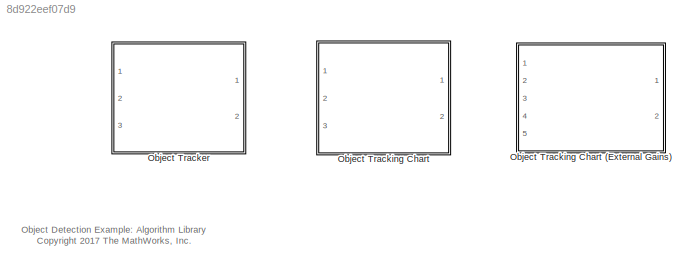
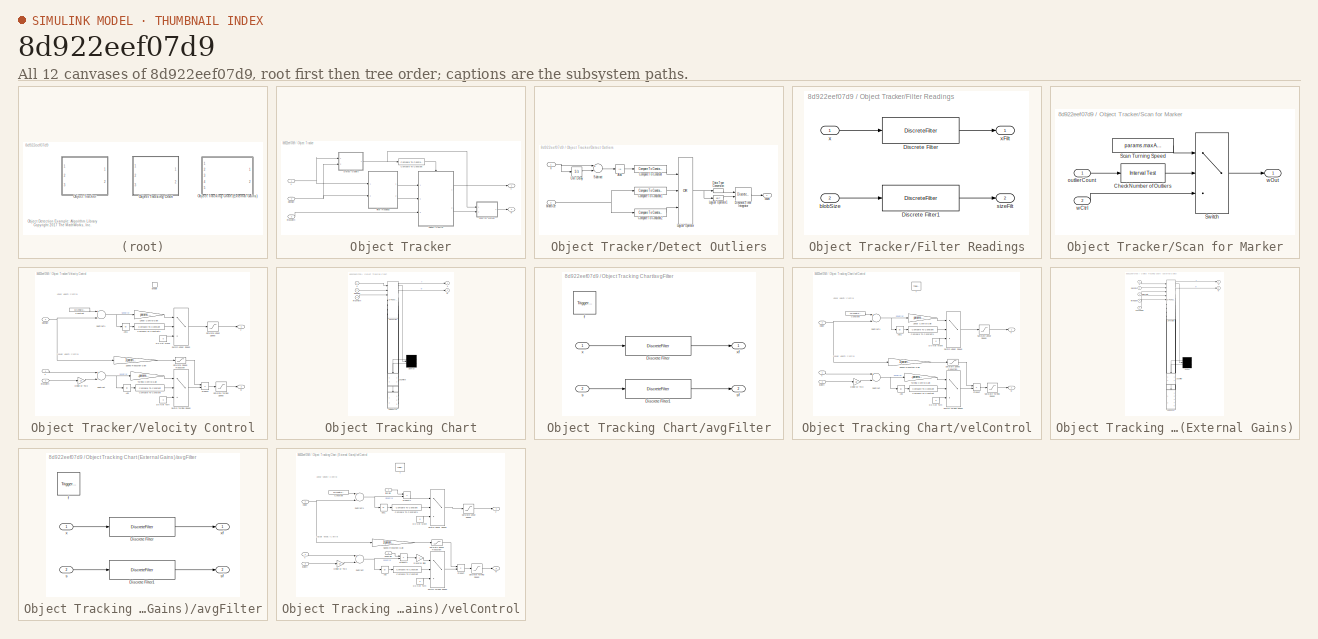
[diagram: thumbnail index - all 12 canvases of the model, root first then tree order]
MODEL slx_8d922eef07d9
KIND library
CONFIG AbsTol = auto
CONFIG EnableMultiTasking = off
CONFIG FixedStep = auto
CONFIG MaxStep = auto
CONFIG MinStep = auto
CONFIG RelTol = 1e-3
CONFIG SampleTimeConstraint = Unconstrained
CONFIG Solver = VariableStepAuto
CONFIG SolverName = VariableStepAuto
CONFIG StartTime = 0.0
CONFIG StopTime = 10.0
BLOCK [SubSystem] Object Tracker
  Ports = [3, 2]
  RequestExecContextInheritance = off
  Variant = off
BLOCK [Reference] Object Tracker/Compare To Constant  REF=simulink/Logic and Bit
Operations/Compare
To Constant
  Ports = [1, 1]
  SourceBlock = simulink/Logic and Bit\nOperations/Compare\nTo Constant
  SourceProductBaseCode = SL
  SourceProductName = Simulink
  SourceType = Compare To Constant
BLOCK [SubSystem] Object Tracker/Detect Outliers
  Ports = [2, 1]
  RequestExecContextInheritance = off
  Variant = off
BLOCK [Abs] Object Tracker/Detect Outliers/Abs
  SaturateOnIntegerOverflow = off
BLOCK [Reference] Object Tracker/Detect Outliers/Compare To Constant  REF=simulink/Logic and Bit
Operations/Compare
To Constant
  Ports = [1, 1]
  SourceBlock = simulink/Logic and Bit\nOperations/Compare\nTo Constant
  SourceProductBaseCode = SL
  SourceProductName = Simulink
  SourceType = Compare To Constant
BLOCK [Reference] Object Tracker/Detect Outliers/Compare To Constant1  REF=simulink/Logic and Bit
Operations/Compare
To Constant
  Ports = [1, 1]
  SourceBlock = simulink/Logic and Bit\nOperations/Compare\nTo Constant
  SourceProductBaseCode = SL
  SourceProductName = Simulink
  SourceType = Compare To Constant
BLOCK [Reference] Object Tracker/Detect Outliers/Compare To Constant2  REF=simulink/Logic and Bit
Operations/Compare
To Constant
  Ports = [1, 1]
  SourceBlock = simulink/Logic and Bit\nOperations/Compare\nTo Constant
  SourceProductBaseCode = SL
  SourceProductName = Simulink
  SourceType = Compare To Constant
BLOCK [DataTypeConversion] Object Tracker/Detect Outliers/Data Type Conversion
  OutDataTypeStr = uint16
  RndMeth = Floor
  SaturateOnIntegerOverflow = off
BLOCK [DiscreteIntegrator] Object Tracker/Detect Outliers/Discrete-Time Integrator
  ExternalReset = level
  ICPrevOutput = DiscIntNeverNeededParam
  ICPrevScaledInput = DiscIntNeverNeededParam
  InitialConditionSetting = State (most efficient)
  IntegratorMethod = Accumulation: Forward Euler
  LimitOutput = on
  LowerSaturationLimit = 0
  Ports = [2, 1]
  SampleTime = -1
  SaturateOnIntegerOverflow = on
  UpperSaturationLimit = 1000
BLOCK [Logic] Object Tracker/Detect Outliers/Logical Operator
  AllPortsSameDT = off
  Inputs = 3
  Operator = OR
  OutDataTypeStr = boolean
  Ports = [3, 1]
BLOCK [Logic] Object Tracker/Detect Outliers/Logical Operator1
  AllPortsSameDT = off
  Operator = NOT
  OutDataTypeStr = boolean
  Ports = [1, 1]
BLOCK [Sum] Object Tracker/Detect Outliers/Subtract
  InputSameDT = off
  Inputs = +-
  OutDataTypeStr = Inherit: Inherit via internal rule
  Ports = [2, 1]
  SaturateOnIntegerOverflow = off
BLOCK [UnitDelay] Object Tracker/Detect Outliers/Unit Delay
  InputProcessing = Elements as channels (sample based)
  SampleTime = -1
BLOCK [Inport] Object Tracker/Detect Outliers/blobSize
  IconDisplay = Port number
  Port = 2
BLOCK [Outport] Object Tracker/Detect Outliers/count
  IconDisplay = Port number
BLOCK [Inport] Object Tracker/Detect Outliers/x
  IconDisplay = Port number
BLOCK [SubSystem] Object Tracker/Filter Readings
  Ports = [2, 2]
  RequestExecContextInheritance = off
  Variant = off
BLOCK [DiscreteFilter] Object Tracker/Filter Readings/Discrete Filter
  Denominator = [params.bufSize]
  InputPortMap = u0
  Numerator = [ones(1,params.bufSize)]
  Ports = [1, 1]
BLOCK [DiscreteFilter] Object Tracker/Filter Readings/Discrete Filter1
  Denominator = [params.bufSize]
  InputPortMap = u0
  Numerator = [ones(1,params.bufSize)]
  Ports = [1, 1]
BLOCK [Inport] Object Tracker/Filter Readings/blobSize
  IconDisplay = Port number
  Port = 2
BLOCK [Outport] Object Tracker/Filter Readings/sizeFilt
  IconDisplay = Port number
  Port = 2
BLOCK [Inport] Object Tracker/Filter Readings/x
  IconDisplay = Port number
BLOCK [Outport] Object Tracker/Filter Readings/xFilt
  IconDisplay = Port number
BLOCK [SubSystem] Object Tracker/Scan for Marker
  Ports = [2, 1]
  RequestExecContextInheritance = off
  Variant = off
BLOCK [Reference] Object Tracker/Scan for Marker/Check Number of Outliers  REF=simulink/Logic and Bit
Operations/Interval Test
  Ports = [1, 1]
  SourceBlock = simulink/Logic and Bit\nOperations/Interval Test
  SourceProductBaseCode = SL
  SourceProductName = Simulink
  SourceType = Interval Test
BLOCK [Constant] Object Tracker/Scan for Marker/Scan Turning Speed
  Value = params.maxAngVel/2
BLOCK [Switch] Object Tracker/Scan for Marker/Switch
  Criteria = u2 > Threshold
  InputSameDT = off
  SaturateOnIntegerOverflow = off
BLOCK [Inport] Object Tracker/Scan for Marker/outlierCount
  IconDisplay = Port number
BLOCK [Inport] Object Tracker/Scan for Marker/wCtrl
  IconDisplay = Port number
  Port = 2
BLOCK [Outport] Object Tracker/Scan for Marker/wOut
  IconDisplay = Port number
BLOCK [SubSystem] Object Tracker/Velocity Control
  Ports = [3, 2, 1]
  RequestExecContextInheritance = off
  Variant = off
BLOCK [Abs] Object Tracker/Velocity Control/Abs
  SaturateOnIntegerOverflow = off
BLOCK [Abs] Object Tracker/Velocity Control/Abs1
  SaturateOnIntegerOverflow = off
BLOCK [Reference] Object Tracker/Velocity Control/Compare To Constant  REF=simulink/Logic and Bit
Operations/Compare
To Constant
  Ports = [1, 1]
  SourceBlock = simulink/Logic and Bit\nOperations/Compare\nTo Constant
  SourceProductBaseCode = SL
  SourceProductName = Simulink
  SourceType = Compare To Constant
BLOCK [Reference] Object Tracker/Velocity Control/Compare To Constant1  REF=simulink/Logic and Bit
Operations/Compare
To Constant
  Ports = [1, 1]
  SourceBlock = simulink/Logic and Bit\nOperations/Compare\nTo Constant
  SourceProductBaseCode = SL
  SourceProductName = Simulink
  SourceType = Compare To Constant
BLOCK [Constant] Object Tracker/Velocity Control/Constant
  Value = params.targetSize
BLOCK [Gain] Object Tracker/Velocity Control/Divide by Two
  Gain = 1/2
  OutDataTypeStr = Inherit: Inherit via internal rule
  ParamDataTypeStr = Inherit: Inherit via internal rule
  SaturateOnIntegerOverflow = off
BLOCK [Constant] Object Tracker/Velocity Control/Do Not Move
  Value = 0
BLOCK [Constant] Object Tracker/Velocity Control/Do Not Turn
  Value = 0
BLOCK [EnablePort] Object Tracker/Velocity Control/Enable
  Ports = []
  StatesWhenEnabling = reset
BLOCK [Gain] Object Tracker/Velocity Control/Linear Control Gain
  Gain = params.linVelGain
  OutDataTypeStr = Inherit: Inherit via internal rule
  ParamDataTypeStr = Inherit: Inherit via internal rule
  SaturateOnIntegerOverflow = off
BLOCK [Product] Object Tracker/Velocity Control/Product
  InputSameDT = off
  OutDataTypeStr = Inherit: Inherit via internal rule
  Ports = [2, 1]
  RndMeth = Floor
  SaturateOnIntegerOverflow = off
BLOCK [Saturate] Object Tracker/Velocity Control/Saturate Linear Speed
  InputPortMap = u0
  LowerLimit = -params.maxLinVel
  Ports = [1, 1]
  UpperLimit = params.maxLinVel
BLOCK [Saturate] Object Tracker/Velocity Control/Saturate Speed Reduction
  InputPortMap = u0
  LowerLimit = 0
  Ports = [1, 1]
  UpperLimit = 1
BLOCK [Saturate] Object Tracker/Velocity Control/Saturate Turning Speed
  InputPortMap = u0
  LowerLimit = -params.maxAngVel
  Ports = [1, 1]
  UpperLimit = params.maxAngVel
BLOCK [Gain] Object Tracker/Velocity Control/Speed Reduction Gain
  Gain = 1/params.speedRedSize
  OutDataTypeStr = Inherit: Inherit via internal rule
  ParamDataTypeStr = Inherit: Inherit via internal rule
  SaturateOnIntegerOverflow = off
BLOCK [Sum] Object Tracker/Velocity Control/Subtract
  InputSameDT = off
  Inputs = +-
  OutDataTypeStr = Inherit: Inherit via internal rule
  Ports = [2, 1]
  SaturateOnIntegerOverflow = off
BLOCK [Sum] Object Tracker/Velocity Control/Subtract1
  InputSameDT = off
  Inputs = +-
  OutDataTypeStr = Inherit: Inherit via internal rule
  Ports = [2, 1]
  SaturateOnIntegerOverflow = off
BLOCK [Switch] Object Tracker/Velocity Control/Switch Linear Speed
  Criteria = u2 ~= 0
  InputSameDT = off
  SaturateOnIntegerOverflow = off
BLOCK [Switch] Object Tracker/Velocity Control/Switch Turning Speed
  Criteria = u2 ~= 0
  InputSameDT = off
  SaturateOnIntegerOverflow = off
BLOCK [Gain] Object Tracker/Velocity Control/Turning Control Gain
  Gain = -params.angVelGain
  OutDataTypeStr = Inherit: Inherit via internal rule
  ParamDataTypeStr = Inherit: Inherit via internal rule
  SaturateOnIntegerOverflow = off
BLOCK [Inport] Object Tracker/Velocity Control/blobSize
  IconDisplay = Port number
  Port = 2
BLOCK [Inport] Object Tracker/Velocity Control/imgWidth
  IconDisplay = Port number
  Port = 3
BLOCK [Outport] Object Tracker/Velocity Control/v
  IconDisplay = Port number
  InitialOutput = 0
  OutputWhenDisabled = reset
BLOCK [Outport] Object Tracker/Velocity Control/w
  IconDisplay = Port number
  InitialOutput = 0
  OutputWhenDisabled = reset
  Port = 2
BLOCK [Inport] Object Tracker/Velocity Control/x
  IconDisplay = Port number
BLOCK [Inport] Object Tracker/blobSize
  IconDisplay = Port number
  Port = 2
BLOCK [Inport] Object Tracker/imgWidth
  IconDisplay = Port number
  Port = 3
BLOCK [Outport] Object Tracker/v
  IconDisplay = Port number
BLOCK [Outport] Object Tracker/w
  IconDisplay = Port number
  Port = 2
BLOCK [Inport] Object Tracker/x
  IconDisplay = Port number
BLOCK [SubSystem] Object Tracking Chart
  ErrorFcn = Stateflow.Translate.translate
  PermitHierarchicalResolution = ExplicitOnly
  Ports = [3, 2]
  RequestExecContextInheritance = off
  SFBlockType = Chart
  TreatAsAtomicUnit = on
  Variant = off
BLOCK [SubSystem] Object Tracking Chart (External Gains)
  ErrorFcn = Stateflow.Translate.translate
  PermitHierarchicalResolution = ExplicitOnly
  Ports = [5, 2]
  RequestExecContextInheritance = off
  SFBlockType = Chart
  TreatAsAtomicUnit = on
  Variant = off
BLOCK [Demux] Object Tracking Chart (External Gains)/ Demux 
  Outputs = 2
  Ports = [1, 2]
BLOCK [S-Function] Object Tracking Chart (External Gains)/ SFunction 
  EnableBusSupport = off
  FunctionName = sf_sfun
  Parameters = params
  PortCounts = [9 10]
  Ports = [9, 10]
  SFcnIsStateOwnerBlock = off
  SFunctionDeploymentMode = off
  Tag = Stateflow S-Function controlLib 1
BLOCK [Inport] Object Tracking Chart (External Gains)/angVelGain
  IconDisplay = Port number
  Port = 5
BLOCK [SubSystem] Object Tracking Chart (External Gains)/avgFilter
  Ports = [2, 2, 0, 1]
  PreDeleteFcn = Stateflow.SLINSF.SimulinkMan.removePreDeleteFcn
  RequestExecContextInheritance = off
  UndoDeleteFcn = Stateflow.SLINSF.SimulinkMan.restorePreDeleteFcn
  Variant = off
BLOCK [DiscreteFilter] Object Tracking Chart (External Gains)/avgFilter/Discrete Filter
  Denominator = [params.bufSize]
  InputPortMap = u0
  Numerator = [ones(1,params.bufSize)]
  Ports = [1, 1]
BLOCK [DiscreteFilter] Object Tracking Chart (External Gains)/avgFilter/Discrete Filter1
  Denominator = [params.bufSize]
  InputPortMap = u0
  Numerator = [ones(1,params.bufSize)]
  Ports = [1, 1]
BLOCK [TriggerPort] Object Tracking Chart (External Gains)/avgFilter/f
  CopyFcn = Stateflow.SLINSF.SimulinkMan.removeBlockPreDeleteFcn
  Ports = []
  PreDeleteFcn = Stateflow.SLINSF.SimulinkMan.unsafePredeleteFcn
  StatesWhenEnabling = held
  TriggerType = function-call
  VariantControl = Variant
BLOCK [Inport] Object Tracking Chart (External Gains)/avgFilter/s
  IconDisplay = Port number
  OutDataTypeStr = double
  Port = 2
  PortDimensions = 1
  SignalType = real
  VarSizeSig = No
BLOCK [Outport] Object Tracking Chart (External Gains)/avgFilter/sf
  IconDisplay = Port number
  Port = 2
BLOCK [Inport] Object Tracking Chart (External Gains)/avgFilter/x
  IconDisplay = Port number
  OutDataTypeStr = double
  PortDimensions = 1
  SignalType = real
  VarSizeSig = No
BLOCK [Outport] Object Tracking Chart (External Gains)/avgFilter/xf
  IconDisplay = Port number
BLOCK [Inport] Object Tracking Chart (External Gains)/blobSize
  IconDisplay = Port number
  Port = 2
BLOCK [Inport] Object Tracking Chart (External Gains)/imgWidth
  IconDisplay = Port number
  Port = 3
BLOCK [Inport] Object Tracking Chart (External Gains)/linVelGain
  IconDisplay = Port number
  Port = 4
BLOCK [Outport] Object Tracking Chart (External Gains)/v
  IconDisplay = Port number
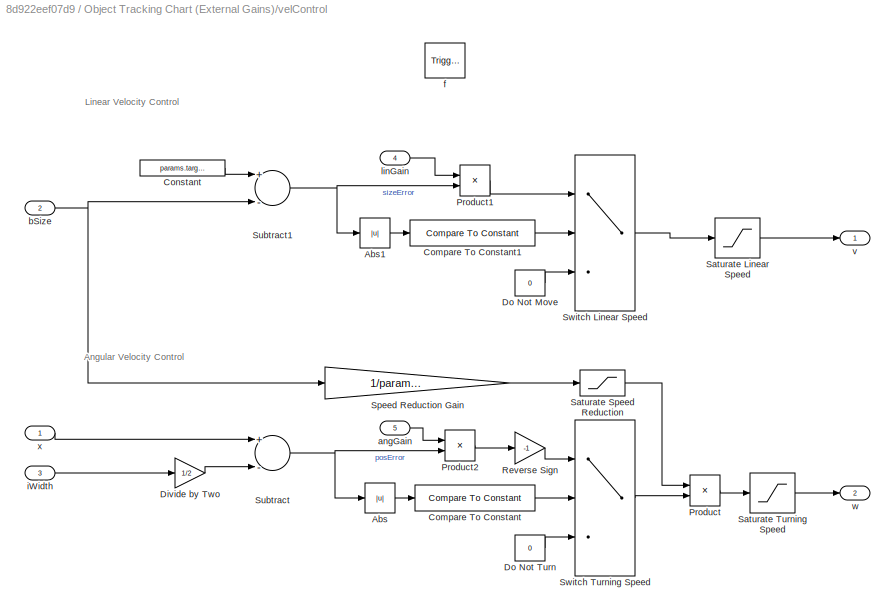
BLOCK [SubSystem] Object Tracking Chart (External Gains)/velControl
  Ports = [5, 2, 0, 1]
  PreDeleteFcn = Stateflow.SLINSF.SimulinkMan.removePreDeleteFcn
  RequestExecContextInheritance = off
  UndoDeleteFcn = Stateflow.SLINSF.SimulinkMan.restorePreDeleteFcn
  Variant = off
BLOCK [Abs] Object Tracking Chart (External Gains)/velControl/Abs
  SaturateOnIntegerOverflow = off
BLOCK [Abs] Object Tracking Chart (External Gains)/velControl/Abs1
  SaturateOnIntegerOverflow = off
BLOCK [Reference] Object Tracking Chart (External Gains)/velControl/Compare To Constant  REF=simulink/Logic and Bit
Operations/Compare
To Constant
  Ports = [1, 1]
  SourceBlock = simulink/Logic and Bit\nOperations/Compare\nTo Constant
  SourceProductBaseCode = SL
  SourceProductName = Simulink
  SourceType = Compare To Constant
BLOCK [Reference] Object Tracking Chart (External Gains)/velControl/Compare To Constant1  REF=simulink/Logic and Bit
Operations/Compare
To Constant
  Ports = [1, 1]
  SourceBlock = simulink/Logic and Bit\nOperations/Compare\nTo Constant
  SourceProductBaseCode = SL
  SourceProductName = Simulink
  SourceType = Compare To Constant
BLOCK [Constant] Object Tracking Chart (External Gains)/velControl/Constant
  Value = params.targetSize
BLOCK [Gain] Object Tracking Chart (External Gains)/velControl/Divide by Two
  Gain = 1/2
  OutDataTypeStr = Inherit: Inherit via internal rule
  ParamDataTypeStr = Inherit: Inherit via internal rule
  SaturateOnIntegerOverflow = off
BLOCK [Constant] Object Tracking Chart (External Gains)/velControl/Do Not Move
  Value = 0
BLOCK [Constant] Object Tracking Chart (External Gains)/velControl/Do Not Turn
  Value = 0
BLOCK [Product] Object Tracking Chart (External Gains)/velControl/Product
  InputSameDT = off
  OutDataTypeStr = Inherit: Inherit via internal rule
  Ports = [2, 1]
  RndMeth = Floor
  SaturateOnIntegerOverflow = off
BLOCK [Product] Object Tracking Chart (External Gains)/velControl/Product1
  InputSameDT = off
  OutDataTypeStr = Inherit: Inherit via internal rule
  Ports = [2, 1]
  RndMeth = Floor
  SaturateOnIntegerOverflow = off
BLOCK [Product] Object Tracking Chart (External Gains)/velControl/Product2
  InputSameDT = off
  OutDataTypeStr = Inherit: Inherit via internal rule
  Ports = [2, 1]
  RndMeth = Floor
  SaturateOnIntegerOverflow = off
BLOCK [Gain] Object Tracking Chart (External Gains)/velControl/Reverse Sign
  Gain = -1
  OutDataTypeStr = Inherit: Inherit via internal rule
  ParamDataTypeStr = Inherit: Inherit via internal rule
  SaturateOnIntegerOverflow = off
BLOCK [Saturate] Object Tracking Chart (External Gains)/velControl/Saturate Linear Speed
  InputPortMap = u0
  LowerLimit = -params.maxLinVel
  Ports = [1, 1]
  UpperLimit = params.maxLinVel
BLOCK [Saturate] Object Tracking Chart (External Gains)/velControl/Saturate Speed Reduction
  InputPortMap = u0
  LowerLimit = 0
  Ports = [1, 1]
  UpperLimit = 1
BLOCK [Saturate] Object Tracking Chart (External Gains)/velControl/Saturate Turning Speed
  InputPortMap = u0
  LowerLimit = -params.maxAngVel
  Ports = [1, 1]
  UpperLimit = params.maxAngVel
BLOCK [Gain] Object Tracking Chart (External Gains)/velControl/Speed Reduction Gain
  Gain = 1/params.speedRedSize
  OutDataTypeStr = Inherit: Inherit via internal rule
  ParamDataTypeStr = Inherit: Inherit via internal rule
  SaturateOnIntegerOverflow = off
BLOCK [Sum] Object Tracking Chart (External Gains)/velControl/Subtract
  InputSameDT = off
  Inputs = +-
  OutDataTypeStr = Inherit: Inherit via internal rule
  Ports = [2, 1]
  SaturateOnIntegerOverflow = off
BLOCK [Sum] Object Tracking Chart (External Gains)/velControl/Subtract1
  InputSameDT = off
  Inputs = +-
  OutDataTypeStr = Inherit: Inherit via internal rule
  Ports = [2, 1]
  SaturateOnIntegerOverflow = off
BLOCK [Switch] Object Tracking Chart (External Gains)/velControl/Switch Linear Speed
  Criteria = u2 ~= 0
  InputSameDT = off
  SaturateOnIntegerOverflow = off
BLOCK [Switch] Object Tracking Chart (External Gains)/velControl/Switch Turning Speed
  Criteria = u2 ~= 0
  InputSameDT = off
  SaturateOnIntegerOverflow = off
BLOCK [Inport] Object Tracking Chart (External Gains)/velControl/angGain
  IconDisplay = Port number
  OutDataTypeStr = double
  Port = 5
  PortDimensions = 1
  SignalType = real
  VarSizeSig = No
BLOCK [Inport] Object Tracking Chart (External Gains)/velControl/bSize
  IconDisplay = Port number
  OutDataTypeStr = double
  Port = 2
  PortDimensions = 1
  SignalType = real
  VarSizeSig = No
BLOCK [TriggerPort] Object Tracking Chart (External Gains)/velControl/f
  CopyFcn = Stateflow.SLINSF.SimulinkMan.removeBlockPreDeleteFcn
  Ports = []
  PreDeleteFcn = Stateflow.SLINSF.SimulinkMan.unsafePredeleteFcn
  StatesWhenEnabling = held
  TriggerType = function-call
  VariantControl = Variant
BLOCK [Inport] Object Tracking Chart (External Gains)/velControl/iWidth
  IconDisplay = Port number
  OutDataTypeStr = double
  Port = 3
  PortDimensions = 1
  SignalType = real
  VarSizeSig = No
BLOCK [Inport] Object Tracking Chart (External Gains)/velControl/linGain
  IconDisplay = Port number
  OutDataTypeStr = double
  Port = 4
  PortDimensions = 1
  SignalType = real
  VarSizeSig = No
BLOCK [Outport] Object Tracking Chart (External Gains)/velControl/v
  IconDisplay = Port number
  InitialOutput = 0
  OutputWhenDisabled = reset
BLOCK [Outport] Object Tracking Chart (External Gains)/velControl/w
  IconDisplay = Port number
  InitialOutput = 0
  OutputWhenDisabled = reset
  Port = 2
BLOCK [Inport] Object Tracking Chart (External Gains)/velControl/x
  IconDisplay = Port number
  OutDataTypeStr = double
  PortDimensions = 1
  SignalType = real
  VarSizeSig = No
BLOCK [Outport] Object Tracking Chart (External Gains)/w
  IconDisplay = Port number
  Port = 2
BLOCK [Inport] Object Tracking Chart (External Gains)/x
  IconDisplay = Port number
BLOCK [Demux] Object Tracking Chart/ Demux 
  Outputs = 2
  Ports = [1, 2]
BLOCK [S-Function] Object Tracking Chart/ SFunction 
  EnableBusSupport = on
  FunctionName = sf_sfun
  Parameters = params
  PortCounts = [7 8]
  Ports = [7, 8]
  SFcnIsStateOwnerBlock = off
  SFunctionDeploymentMode = off
  Tag = Stateflow S-Function controlLib 3
BLOCK [SubSystem] Object Tracking Chart/avgFilter
  Ports = [2, 2, 0, 1]
  PreDeleteFcn = Stateflow.SLINSF.SimulinkMan.removePreDeleteFcn
  RequestExecContextInheritance = off
  UndoDeleteFcn = Stateflow.SLINSF.SimulinkMan.restorePreDeleteFcn
  Variant = off
BLOCK [DiscreteFilter] Object Tracking Chart/avgFilter/Discrete Filter
  Denominator = [params.bufSize]
  InputPortMap = u0
  Numerator = [ones(1,params.bufSize)]
  Ports = [1, 1]
BLOCK [DiscreteFilter] Object Tracking Chart/avgFilter/Discrete Filter1
  Denominator = [params.bufSize]
  InputPortMap = u0
  Numerator = [ones(1,params.bufSize)]
  Ports = [1, 1]
BLOCK [TriggerPort] Object Tracking Chart/avgFilter/f
  CopyFcn = Stateflow.SLINSF.SimulinkMan.removeBlockPreDeleteFcn
  Ports = []
  PreDeleteFcn = Stateflow.SLINSF.SimulinkMan.unsafePredeleteFcn
  StatesWhenEnabling = held
  TriggerType = function-call
  VariantControl = Variant
BLOCK [Inport] Object Tracking Chart/avgFilter/s
  IconDisplay = Port number
  OutDataTypeStr = double
  Port = 2
  PortDimensions = 1
  SignalType = real
  VarSizeSig = No
BLOCK [Outport] Object Tracking Chart/avgFilter/sf
  IconDisplay = Port number
  Port = 2
BLOCK [Inport] Object Tracking Chart/avgFilter/x
  IconDisplay = Port number
  OutDataTypeStr = double
  PortDimensions = 1
  SignalType = real
  VarSizeSig = No
BLOCK [Outport] Object Tracking Chart/avgFilter/xf
  IconDisplay = Port number
BLOCK [Inport] Object Tracking Chart/blobSize
  IconDisplay = Port number
  Port = 2
BLOCK [Inport] Object Tracking Chart/imgWidth
  IconDisplay = Port number
  Port = 3
BLOCK [Outport] Object Tracking Chart/v
  IconDisplay = Port number
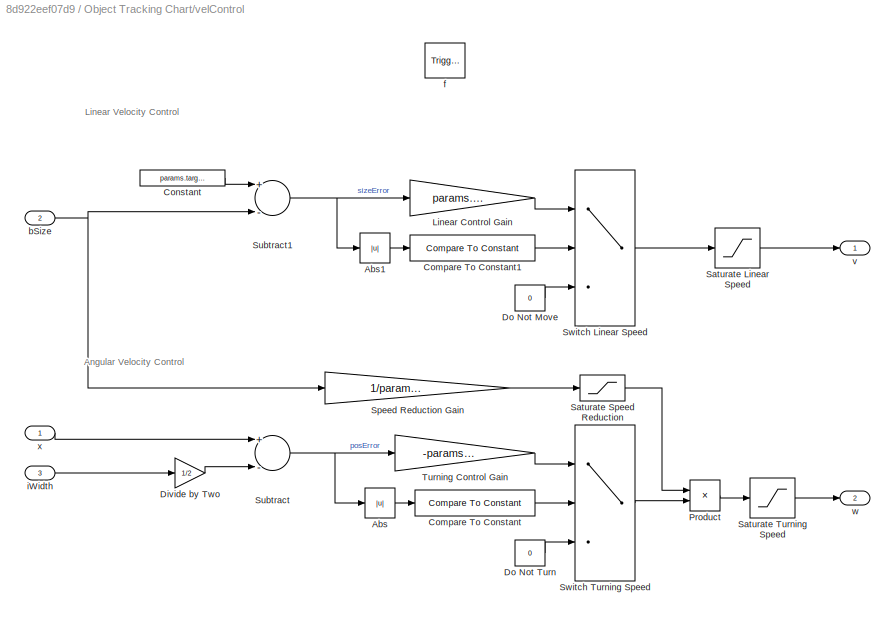
BLOCK [SubSystem] Object Tracking Chart/velControl
  Ports = [3, 2, 0, 1]
  PreDeleteFcn = Stateflow.SLINSF.SimulinkMan.removePreDeleteFcn
  RequestExecContextInheritance = off
  UndoDeleteFcn = Stateflow.SLINSF.SimulinkMan.restorePreDeleteFcn
  Variant = off
BLOCK [Abs] Object Tracking Chart/velControl/Abs
  SaturateOnIntegerOverflow = off
BLOCK [Abs] Object Tracking Chart/velControl/Abs1
  SaturateOnIntegerOverflow = off
BLOCK [Reference] Object Tracking Chart/velControl/Compare To Constant  REF=simulink/Logic and Bit
Operations/Compare
To Constant
  Ports = [1, 1]
  SourceBlock = simulink/Logic and Bit\nOperations/Compare\nTo Constant
  SourceProductBaseCode = SL
  SourceProductName = Simulink
  SourceType = Compare To Constant
BLOCK [Reference] Object Tracking Chart/velControl/Compare To Constant1  REF=simulink/Logic and Bit
Operations/Compare
To Constant
  Ports = [1, 1]
  SourceBlock = simulink/Logic and Bit\nOperations/Compare\nTo Constant
  SourceProductBaseCode = SL
  SourceProductName = Simulink
  SourceType = Compare To Constant
BLOCK [Constant] Object Tracking Chart/velControl/Constant
  Value = params.targetSize
BLOCK [Gain] Object Tracking Chart/velControl/Divide by Two
  Gain = 1/2
  OutDataTypeStr = Inherit: Inherit via internal rule
  ParamDataTypeStr = Inherit: Inherit via internal rule
  SaturateOnIntegerOverflow = off
BLOCK [Constant] Object Tracking Chart/velControl/Do Not Move
  Value = 0
BLOCK [Constant] Object Tracking Chart/velControl/Do Not Turn
  Value = 0
BLOCK [Gain] Object Tracking Chart/velControl/Linear Control Gain
  Gain = params.linVelGain
  OutDataTypeStr = Inherit: Inherit via internal rule
  ParamDataTypeStr = Inherit: Inherit via internal rule
  SaturateOnIntegerOverflow = off
BLOCK [Product] Object Tracking Chart/velControl/Product
  InputSameDT = off
  OutDataTypeStr = Inherit: Inherit via internal rule
  Ports = [2, 1]
  RndMeth = Floor
  SaturateOnIntegerOverflow = off
BLOCK [Saturate] Object Tracking Chart/velControl/Saturate Linear Speed
  InputPortMap = u0
  LowerLimit = -params.maxLinVel
  Ports = [1, 1]
  UpperLimit = params.maxLinVel
BLOCK [Saturate] Object Tracking Chart/velControl/Saturate Speed Reduction
  InputPortMap = u0
  LowerLimit = 0
  Ports = [1, 1]
  UpperLimit = 1
BLOCK [Saturate] Object Tracking Chart/velControl/Saturate Turning Speed
  InputPortMap = u0
  LowerLimit = -params.maxAngVel
  Ports = [1, 1]
  UpperLimit = params.maxAngVel
BLOCK [Gain] Object Tracking Chart/velControl/Speed Reduction Gain
  Gain = 1/params.speedRedSize
  OutDataTypeStr = Inherit: Inherit via internal rule
  ParamDataTypeStr = Inherit: Inherit via internal rule
  SaturateOnIntegerOverflow = off
BLOCK [Sum] Object Tracking Chart/velControl/Subtract
  InputSameDT = off
  Inputs = +-
  OutDataTypeStr = Inherit: Inherit via internal rule
  Ports = [2, 1]
  SaturateOnIntegerOverflow = off
BLOCK [Sum] Object Tracking Chart/velControl/Subtract1
  InputSameDT = off
  Inputs = +-
  OutDataTypeStr = Inherit: Inherit via internal rule
  Ports = [2, 1]
  SaturateOnIntegerOverflow = off
BLOCK [Switch] Object Tracking Chart/velControl/Switch Linear Speed
  Criteria = u2 ~= 0
  InputSameDT = off
  SaturateOnIntegerOverflow = off
BLOCK [Switch] Object Tracking Chart/velControl/Switch Turning Speed
  Criteria = u2 ~= 0
  InputSameDT = off
  SaturateOnIntegerOverflow = off
BLOCK [Gain] Object Tracking Chart/velControl/Turning Control Gain
  Gain = -params.angVelGain
  OutDataTypeStr = Inherit: Inherit via internal rule
  ParamDataTypeStr = Inherit: Inherit via internal rule
  SaturateOnIntegerOverflow = off
BLOCK [Inport] Object Tracking Chart/velControl/bSize
  IconDisplay = Port number
  OutDataTypeStr = double
  Port = 2
  PortDimensions = 1
  SignalType = real
  VarSizeSig = No
BLOCK [TriggerPort] Object Tracking Chart/velControl/f
  CopyFcn = Stateflow.SLINSF.SimulinkMan.removeBlockPreDeleteFcn
  Ports = []
  PreDeleteFcn = Stateflow.SLINSF.SimulinkMan.unsafePredeleteFcn
  StatesWhenEnabling = held
  TriggerType = function-call
  VariantControl = Variant
BLOCK [Inport] Object Tracking Chart/velControl/iWidth
  IconDisplay = Port number
  OutDataTypeStr = double
  Port = 3
  PortDimensions = 1
  SignalType = real
  VarSizeSig = No
BLOCK [Outport] Object Tracking Chart/velControl/v
  IconDisplay = Port number
  InitialOutput = 0
  OutputWhenDisabled = reset
BLOCK [Outport] Object Tracking Chart/velControl/w
  IconDisplay = Port number
  InitialOutput = 0
  OutputWhenDisabled = reset
  Port = 2
BLOCK [Inport] Object Tracking Chart/velControl/x
  IconDisplay = Port number
  OutDataTypeStr = double
  PortDimensions = 1
  SignalType = real
  VarSizeSig = No
BLOCK [Outport] Object Tracking Chart/w
  IconDisplay = Port number
  Port = 2
BLOCK [Inport] Object Tracking Chart/x
  IconDisplay = Port number
ANNOTATION (root): Object Detection Example: Algorithm Library <copyright redacted>
ANNOTATION Object Tracker/Velocity Control: Angular Velocity Control
ANNOTATION Object Tracker/Velocity Control: Linear Velocity Control
ANNOTATION Object Tracking Chart (External Gains)/velControl: Angular Velocity Control
ANNOTATION Object Tracking Chart (External Gains)/velControl: Linear Velocity Control
ANNOTATION Object Tracking Chart/velControl: Angular Velocity Control
ANNOTATION Object Tracking Chart/velControl: Linear Velocity Control
LINE Object Tracker/Compare To Constant:1 -> Object Tracker/Velocity Control:enable
LINE Object Tracker/Detect Outliers/Abs:1 -> Object Tracker/Detect Outliers/Compare To Constant:1
LINE Object Tracker/Detect Outliers/Compare To Constant1:1 -> Object Tracker/Detect Outliers/Logical Operator:2
LINE Object Tracker/Detect Outliers/Compare To Constant2:1 -> Object Tracker/Detect Outliers/Logical Operator:3
LINE Object Tracker/Detect Outliers/Compare To Constant:1 -> Object Tracker/Detect Outliers/Logical Operator:1
LINE Object Tracker/Detect Outliers/Data Type Conversion:1 -> Object Tracker/Detect Outliers/Discrete-Time Integrator:1
LINE Object Tracker/Detect Outliers/Discrete-Time Integrator:1 -> Object Tracker/Detect Outliers/count:1
LINE Object Tracker/Detect Outliers/Logical Operator1:1 -> Object Tracker/Detect Outliers/Discrete-Time Integrator:2
NET Object Tracker/Detect Outliers/Logical Operator:1 -> Object Tracker/Detect Outliers/Data Type Conversion:1, Object Tracker/Detect Outliers/Logical Operator1:1
LINE Object Tracker/Detect Outliers/Subtract:1 -> Object Tracker/Detect Outliers/Abs:1
LINE Object Tracker/Detect Outliers/Unit Delay:1 -> Object Tracker/Detect Outliers/Subtract:2
NET Object Tracker/Detect Outliers/blobSize:1 -> Object Tracker/Detect Outliers/Compare To Constant1:1, Object Tracker/Detect Outliers/Compare To Constant2:1
NET Object Tracker/Detect Outliers/x:1 -> Object Tracker/Detect Outliers/Subtract:1, Object Tracker/Detect Outliers/Unit Delay:1
NET Object Tracker/Detect Outliers:1 -> Object Tracker/Compare To Constant:1, Object Tracker/Scan for Marker:1
LINE Object Tracker/Filter Readings/Discrete Filter1:1 -> Object Tracker/Filter Readings/sizeFilt:1
LINE Object Tracker/Filter Readings/Discrete Filter:1 -> Object Tracker/Filter Readings/xFilt:1
LINE Object Tracker/Filter Readings/blobSize:1 -> Object Tracker/Filter Readings/Discrete Filter1:1
LINE Object Tracker/Filter Readings/x:1 -> Object Tracker/Filter Readings/Discrete Filter:1
LINE Object Tracker/Filter Readings:1 -> Object Tracker/Velocity Control:1
LINE Object Tracker/Filter Readings:2 -> Object Tracker/Velocity Control:2
LINE Object Tracker/Scan for Marker/Check Number of Outliers:1 -> Object Tracker/Scan for Marker/Switch:2
LINE Object Tracker/Scan for Marker/Scan Turning Speed:1 -> Object Tracker/Scan for Marker/Switch:1
LINE Object Tracker/Scan for Marker/Switch:1 -> Object Tracker/Scan for Marker/wOut:1
LINE Object Tracker/Scan for Marker/outlierCount:1 -> Object Tracker/Scan for Marker/Check Number of Outliers:1
LINE Object Tracker/Scan for Marker/wCtrl:1 -> Object Tracker/Scan for Marker/Switch:3
LINE Object Tracker/Scan for Marker:1 -> Object Tracker/w:1
LINE Object Tracker/Velocity Control/Abs1:1 -> Object Tracker/Velocity Control/Compare To Constant1:1
LINE Object Tracker/Velocity Control/Abs:1 -> Object Tracker/Velocity Control/Compare To Constant:1
LINE Object Tracker/Velocity Control/Compare To Constant1:1 -> Object Tracker/Velocity Control/Switch Linear Speed:2
LINE Object Tracker/Velocity Control/Compare To Constant:1 -> Object Tracker/Velocity Control/Switch Turning Speed:2
LINE Object Tracker/Velocity Control/Constant:1 -> Object Tracker/Velocity Control/Subtract1:1
LINE Object Tracker/Velocity Control/Divide by Two:1 -> Object Tracker/Velocity Control/Subtract:2
LINE Object Tracker/Velocity Control/Do Not Move:1 -> Object Tracker/Velocity Control/Switch Linear Speed:3
LINE Object Tracker/Velocity Control/Do Not Turn:1 -> Object Tracker/Velocity Control/Switch Turning Speed:3
LINE Object Tracker/Velocity Control/Linear Control Gain:1 -> Object Tracker/Velocity Control/Switch Linear Speed:1
LINE Object Tracker/Velocity Control/Product:1 -> Object Tracker/Velocity Control/Saturate Turning Speed:1
LINE Object Tracker/Velocity Control/Saturate Linear Speed:1 -> Object Tracker/Velocity Control/v:1
LINE Object Tracker/Velocity Control/Saturate Speed Reduction:1 -> Object Tracker/Velocity Control/Product:1
LINE Object Tracker/Velocity Control/Saturate Turning Speed:1 -> Object Tracker/Velocity Control/w:1
LINE Object Tracker/Velocity Control/Speed Reduction Gain:1 -> Object Tracker/Velocity Control/Saturate Speed Reduction:1
NET Object Tracker/Velocity Control/Subtract1:1 -> Object Tracker/Velocity Control/Abs1:1, Object Tracker/Velocity Control/Linear Control Gain:1
NET Object Tracker/Velocity Control/Subtract:1 -> Object Tracker/Velocity Control/Abs:1, Object Tracker/Velocity Control/Turning Control Gain:1
LINE Object Tracker/Velocity Control/Switch Linear Speed:1 -> Object Tracker/Velocity Control/Saturate Linear Speed:1
LINE Object Tracker/Velocity Control/Switch Turning Speed:1 -> Object Tracker/Velocity Control/Product:2
LINE Object Tracker/Velocity Control/Turning Control Gain:1 -> Object Tracker/Velocity Control/Switch Turning Speed:1
NET Object Tracker/Velocity Control/blobSize:1 -> Object Tracker/Velocity Control/Speed Reduction Gain:1, Object Tracker/Velocity Control/Subtract1:2
LINE Object Tracker/Velocity Control/imgWidth:1 -> Object Tracker/Velocity Control/Divide by Two:1
LINE Object Tracker/Velocity Control/x:1 -> Object Tracker/Velocity Control/Subtract:1
LINE Object Tracker/Velocity Control:1 -> Object Tracker/v:1
LINE Object Tracker/Velocity Control:2 -> Object Tracker/Scan for Marker:2
NET Object Tracker/blobSize:1 -> Object Tracker/Detect Outliers:2, Object Tracker/Filter Readings:2
LINE Object Tracker/imgWidth:1 -> Object Tracker/Velocity Control:3
NET Object Tracker/x:1 -> Object Tracker/Detect Outliers:1, Object Tracker/Filter Readings:1
note: NET lines group one-source signal fan-out (src -> all destinations, sorted); 1:1 wires keep LINE
CHART Object Tracking Chart 
(External Gains) states=8 transitions=17
  STATE_LABEL 'TrackMarker\nen,du:\n[xFilt,sizeFilt] = avgFilter(x,blobSize);'
  STATE_LABEL 'Normal\nen,du:\n[v,w] = velControl( ...\n    xFilt,sizeFilt,imgWidth,linVelGain,angVelGain);'
  STATE_LABEL 'Abnormal'
  STATE_LABEL 'Stop\nen:\nv = 0;\nw = 0;'
  STATE_LABEL 'Scan\nen:\nv = 0;\nw = params.maxAngVel/2;'
  STATE_LABEL '[count >= 50 && ...\ncount <= 500]'
  STATE_LABEL '[count >= 500]'
  STATE_LABEL '[count >= ...\nparams.maxCounts]'
  STATE_LABEL '[count < ...\nparams.maxCounts]'
  STATE_LABEL 'Normal\nen,du:\n[v,w] = velControl( ...\n    xFilt,sizeFilt,imgWidth,linVelGain,angVelGain);'
  STATE_LABEL 'Abnormal'
  STATE_LABEL 'Stop\nen:\nv = 0;\nw = 0;'
  STATE_LABEL 'Scan\nen:\nv = 0;\nw = params.maxAngVel/2;'
  STATE_LABEL '[count >= 50 && ...\ncount <= 500]'
  STATE_LABEL '[count >= 500]'
  STATE_LABEL 'Stop\nen:\nv = 0;\nw = 0;'
  STATE_LABEL 'Scan\nen:\nv = 0;\nw = params.maxAngVel/2;'
  STATE_LABEL 'DetectOutliers\n'
  STATE_LABEL '{ \ncount = 0;\nxPrev = 0;\n}'
  STATE_LABEL '% Test for outlier\n[abs(x-xPrev)>=params.maxDisp || ... \nblobSize<=params.minSize || ...\nblobSize>=params.maxSize]'
  STATE_LABEL '% Reset counter\n{count = 0;}'
  STATE_LABEL '% Increment counter\n% with saturation'
  STATE_LABEL '[count<1000]'
  STATE_LABEL '{count=count+1;}'
  STATE_LABEL '% Update previous location value\n{xPrev = x;}'
  STATE_LABEL '[v,w] = velControl(x,bSize,iWidth,linGain,angGain)'
  STATE_LABEL '[xf,sf] = avgFilter(x,s)'
CHART Object Tracking Chart states=8 transitions=17
  STATE_LABEL 'TrackMarker\nen,du:\n[xFilt,sizeFilt] = avgFilter(x,blobSize);'
  STATE_LABEL 'Normal\nen,du:\n[v,w] = velControl(xFilt,sizeFilt,imgWidth);'
  STATE_LABEL 'Abnormal'
  STATE_LABEL 'Stop\nen:\nv = 0;\nw = 0;'
  STATE_LABEL 'Scan\nen:\nv = 0;\nw = params.maxAngVel/2;'
  STATE_LABEL '[count >= 50 && ...\ncount <= 500]'
  STATE_LABEL '[count >= 500]'
  STATE_LABEL '[count >= ...\nparams.maxCounts]'
  STATE_LABEL '[count < ...\nparams.maxCounts]'
  STATE_LABEL 'Normal\nen,du:\n[v,w] = velControl(xFilt,sizeFilt,imgWidth);'
  STATE_LABEL 'Abnormal'
  STATE_LABEL 'Stop\nen:\nv = 0;\nw = 0;'
  STATE_LABEL 'Scan\nen:\nv = 0;\nw = params.maxAngVel/2;'
  STATE_LABEL '[count >= 50 && ...\ncount <= 500]'
  STATE_LABEL '[count >= 500]'
  STATE_LABEL 'Stop\nen:\nv = 0;\nw = 0;'
  STATE_LABEL 'Scan\nen:\nv = 0;\nw = params.maxAngVel/2;'
  STATE_LABEL 'DetectOutliers\n'
  STATE_LABEL '{ \ncount = 0;\nxPrev = 0;\n}'
  STATE_LABEL '% Test for outlier\n[abs(x-xPrev)>=params.maxDisp || ... \nblobSize<=params.minSize || ...\nblobSize>=params.maxSize]'
  STATE_LABEL '% Reset counter\n{count = 0;}'
  STATE_LABEL '% Increment counter\n% with saturation'
  STATE_LABEL '[count<1000]'
  STATE_LABEL '{count=count+1;}'
  STATE_LABEL '% Update previous location value\n{xPrev = x;}'
  STATE_LABEL '[xf,sf] = avgFilter(x,s)'
  STATE_LABEL '[v,w] = velControl(x,bSize,iWidth)'
